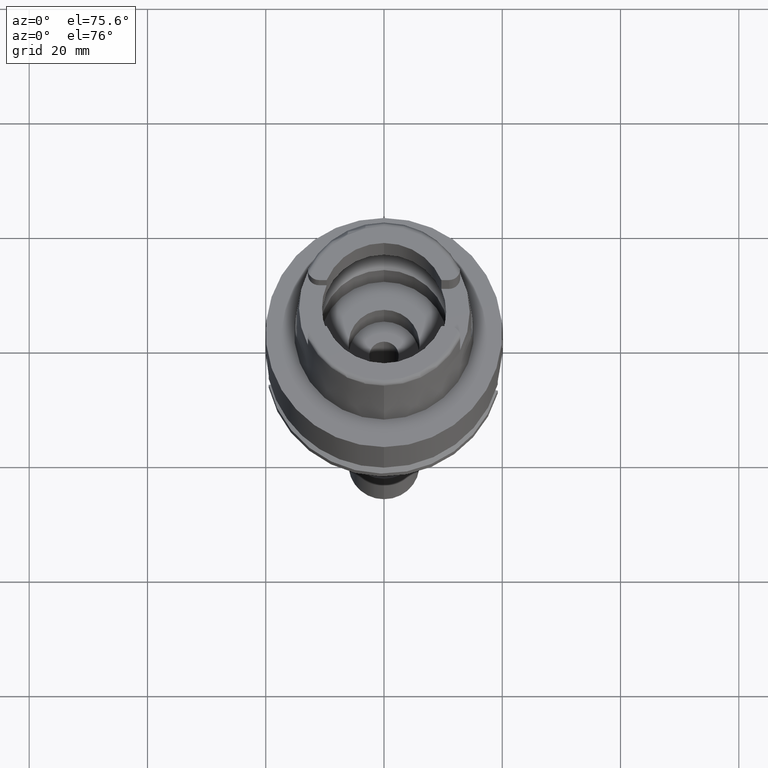
[diagram: clean part render]
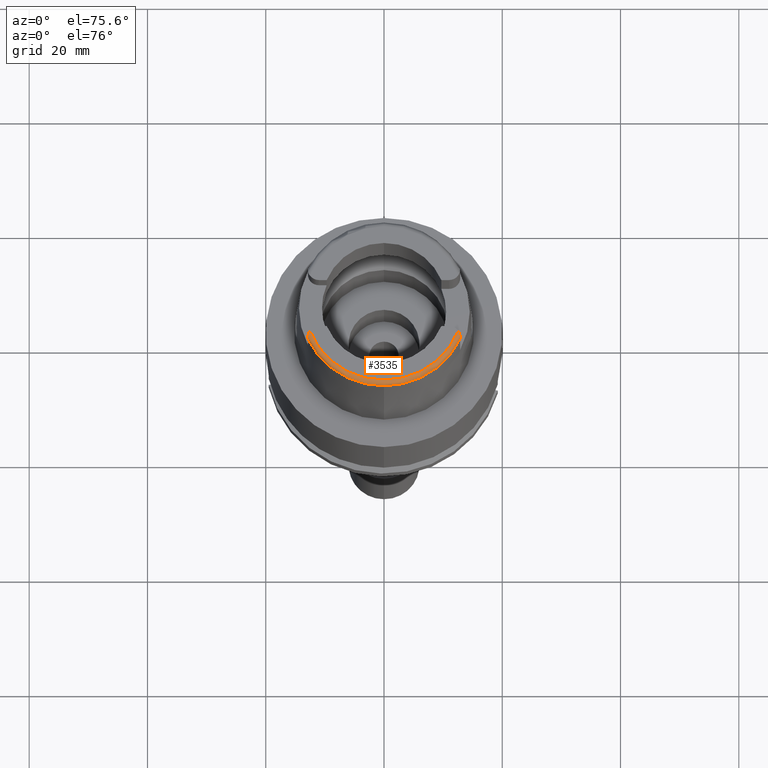
[diagram: same view with one face highlighted and labeled with its STEP entity id]
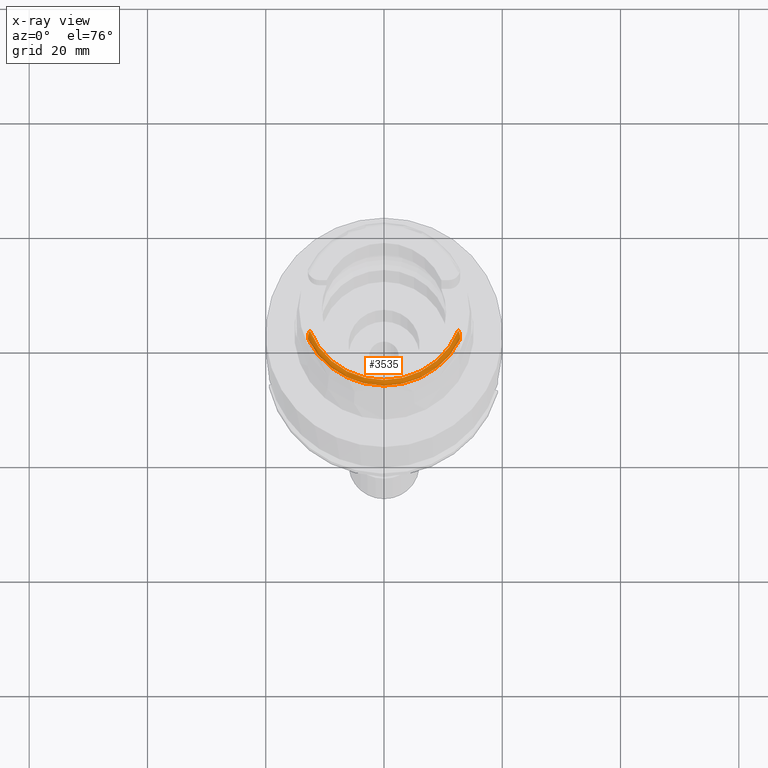
[diagram: x-ray of the same camera — body ghosted, the highlighted face saturated]
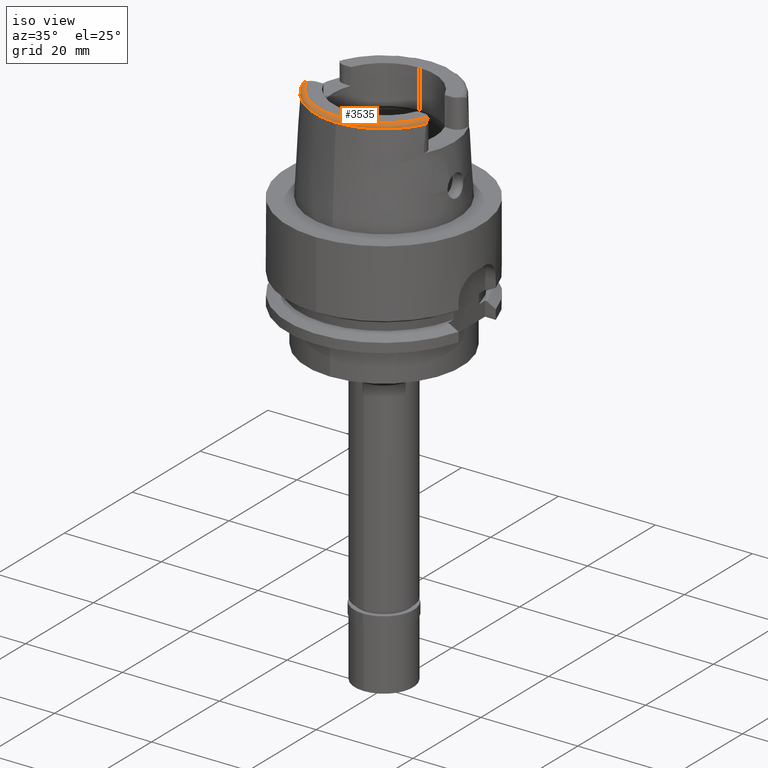
[diagram: same view with one face highlighted and labeled with its STEP entity id]
A machine part, auxiliary view. The second image highlights one B-rep face of the part: STEP entity #3535.
The next image is the same camera in x-ray: the body ghosted, the highlighted face saturated — about 0% of this face is hidden behind the body in this view.
A second angle (iso view) of the same face is appended — the face is thin or edge-on in the first view.
In plain terms, the highlighted toroidal blend (fillet) surface has major radius 13.439 mm and minor (blend) radius 0.8 mm.
Its self-contained STEP definition (entity closure, byte-faithful):
#6 = EDGE_LOOP ( 'NONE', ( #4674, #2581, #4157, #4992, #4122, #5005, #3753 ) ) ;
#55 = CARTESIAN_POINT ( 'NONE',  ( -12.63857320992588740, -4.983089659749927236, 19.98670150271702184 ) ) ;
#67 = AXIS2_PLACEMENT_3D ( 'NONE', #4349, #1844, #2269 ) ;
#84 = DIRECTION ( 'NONE',  ( -0.001046041333563013523, -0.9999994528986144715, 0.0000000000000000000 ) ) ;
#134 = CARTESIAN_POINT ( 'NONE',  ( -12.76854466438027913, -5.266377473712359425, 19.90827737632032424 ) ) ;
#192 = CARTESIAN_POINT ( 'NONE',  ( -12.83719301516156897, -5.506101886964135161, 19.79995353554010507 ) ) ;
#253 = VERTEX_POINT ( 'NONE', #5057 ) ;
#271 = CARTESIAN_POINT ( 'NONE',  ( -12.86081662667556635, -5.636382681480650803, 19.72613978190158690 ) ) ;
#292 = CARTESIAN_POINT ( 'NONE',  ( 12.88000213910999925, -6.065715440485000443, 19.26282987802000335 ) ) ;
#309 = CARTESIAN_POINT ( 'NONE',  ( -12.87999878070000115, -6.068418760296000691, 19.23992111829999985 ) ) ;
#336 = CARTESIAN_POINT ( 'NONE',  ( 12.64411188684354848, -4.987922265928352417, 19.98918976611777154 ) ) ;
#408 = VERTEX_POINT ( 'NONE', #4471 ) ;
#437 = CARTESIAN_POINT ( 'NONE',  ( 0.0000000000000000000, 0.0000000000000000000, 20.00000000000000000 ) ) ;
#508 = CARTESIAN_POINT ( 'NONE',  ( -12.83200159707264731, -5.482917224599092698, 19.81193871953858832 ) ) ;
#535 = CARTESIAN_POINT ( 'NONE',  ( -12.75433686243704301, -5.228841568962940833, 19.92179084580359572 ) ) ;
#549 = CARTESIAN_POINT ( 'NONE',  ( -12.87999878070000115, -6.065726558913000055, 19.26286937616000117 ) ) ;
#589 = VERTEX_POINT ( 'NONE', #2887 ) ;
#661 = CARTESIAN_POINT ( 'NONE',  ( 12.81455670654926671, -5.410378019032934915, 19.84803529614281103 ) ) ;
#833 = FACE_OUTER_BOUND ( 'NONE', #6, .T. ) ;
#855 = EDGE_CURVE ( 'NONE', #918, #589, #4828, .T. ) ;
#880 = CARTESIAN_POINT ( 'NONE',  ( -12.62684076444257109, -4.962557692575448876, 19.98990576004395336 ) ) ;
#909 = CARTESIAN_POINT ( 'NONE',  ( -12.59107063544328575, -4.902518344212351664, 19.99754377842982223 ) ) ;
#918 = VERTEX_POINT ( 'NONE', #309 ) ;
#1046 = CARTESIAN_POINT ( 'NONE',  ( 12.88000026739000070, -6.024288196518999605, 19.38194418187999801 ) ) ;
#1047 = CARTESIAN_POINT ( 'NONE',  ( -12.88000000000000078, -5.904999999999999361, 19.52698079989999869 ) ) ;
#1063 = CARTESIAN_POINT ( 'NONE',  ( 12.54148453352999937, -4.828791175990000184, 20.00000000000000000 ) ) ;
#1101 = CARTESIAN_POINT ( 'NONE',  ( -12.85711635459553825, -5.611799529522623509, 19.74093359873433329 ) ) ;
#1108 = TOROIDAL_SURFACE ( 'NONE', #1707, 13.43897535253999997, 0.8000000000000000444 ) ;
#1311 = CARTESIAN_POINT ( 'NONE',  ( -12.79486012366100489, -5.345599364782248841, 19.87611183064335663 ) ) ;
#1352 = AXIS2_PLACEMENT_3D ( 'NONE', #437, #3729, #2906 ) ;
#1374 = CARTESIAN_POINT ( 'NONE',  ( -12.83528984767741399, -5.497430285917277892, 19.80447797007779442 ) ) ;
#1479 = CARTESIAN_POINT ( 'NONE',  ( -12.85113354569106470, -5.574794193303445056, 19.76275470885714114 ) ) ;
#1549 = CARTESIAN_POINT ( 'NONE',  ( 12.82761557913480743, -5.461296134799156654, 19.82363403086766240 ) ) ;
#1672 = VERTEX_POINT ( 'NONE', #3715 ) ;
#1707 = AXIS2_PLACEMENT_3D ( 'NONE', #3265, #4899, #2024 ) ;
#1724 = CARTESIAN_POINT ( 'NONE',  ( -12.79744393601692032, -5.353975916338745478, 19.87251842005004931 ) ) ;
#1765 = CARTESIAN_POINT ( 'NONE',  ( -12.87999878070000115, -6.068418760296000691, 19.23992111829999985 ) ) ;
#1838 = CARTESIAN_POINT ( 'NONE',  ( 12.88000000000000078, -5.904999999999999361, 19.52698079989999869 ) ) ;
#1844 = DIRECTION ( 'NONE',  ( 0.0000000000000000000, 0.0000000000000000000, -1.000000000000000000 ) ) ;
#1860 = CARTESIAN_POINT ( 'NONE',  ( 12.88000213910999925, -6.068393260412999979, 19.24000420731999839 ) ) ;
#1928 = CARTESIAN_POINT ( 'NONE',  ( 12.70933599500946976, -5.120777886780442323, 19.95675906447110393 ) ) ;
#1966 = CIRCLE ( 'NONE', #67, 14.23797715756000315 ) ;
#2024 = DIRECTION ( 'NONE',  ( -0.001046041333563015692, -0.9999994528986146936, 0.0000000000000000000 ) ) ;
#2125 = CARTESIAN_POINT ( 'NONE',  ( -12.72513106151510520, -5.156116146892294694, 19.94624949097419631 ) ) ;
#2170 = CARTESIAN_POINT ( 'NONE',  ( -12.88000000000000078, -5.930580561565999886, 19.50317608033999761 ) ) ;
#2238 = CARTESIAN_POINT ( 'NONE',  ( -12.87999999999921386, -5.847752983191679910, 19.58025364057268902 ) ) ;
#2262 = CARTESIAN_POINT ( 'NONE',  ( 12.88000000000000078, -5.930582771516999863, 19.50317402381000065 ) ) ;
#2269 = DIRECTION ( 'NONE',  ( 0.9046233376276806570, -0.4262119390858908896, 0.0000000000000000000 ) ) ;
#2497 = EDGE_CURVE ( 'NONE', #3601, #1672, #4923, .T. ) ;
#2581 = ORIENTED_EDGE ( 'NONE', *, *, #3176, .F. ) ;
#2606 = CARTESIAN_POINT ( 'NONE',  ( -12.56646350096936260, -4.864569262087712787, 19.99999999999970512 ) ) ;
#2674 = CARTESIAN_POINT ( 'NONE',  ( -12.88000004355000172, -5.975350730613000039, 19.45502053347999905 ) ) ;
#2854 = B_SPLINE_CURVE_WITH_KNOTS ( 'NONE', 3,
 ( #1063, #4334, #336, #1928, #5189, #3921, #5238, #661, #1549, #3951, #3195, #4827, #4773, #4031 ),
 .UNSPECIFIED., .F., .F.,
 ( 4, 2, 2, 2, 2, 2, 4 ),
 ( 0.0000000000000000000, 0.2500000000000024425, 0.3750000000000017764, 0.5000000000000011102, 0.6250000000000004441, 0.7499999999999997780, 1.000000000000000000 ),
 .UNSPECIFIED. ) ;
#2887 = CARTESIAN_POINT ( 'NONE',  ( -12.88000000000000078, -5.904999999999999361, 19.52698079989999869 ) ) ;
#2906 = DIRECTION ( 'NONE',  ( 0.9332173178785413414, -0.3593124512337161347, 0.0000000000000000000 ) ) ;
#2926 = CARTESIAN_POINT ( 'NONE',  ( -12.78415962775907033, -5.312138087209837600, 19.89010133047479201 ) ) ;
#2996 = EDGE_CURVE ( 'NONE', #5090, #253, #4881, .T. ) ;
#3126 = CARTESIAN_POINT ( 'NONE',  ( -12.84388876495184029, -5.537421669254533718, 19.78342096623057245 ) ) ;
#3176 = EDGE_CURVE ( 'NONE', #1672, #408, #1966, .T. ) ;
#3195 = CARTESIAN_POINT ( 'NONE',  ( 12.85786363444935709, -5.613398934760802206, 19.74078735948931396 ) ) ;
#3265 = CARTESIAN_POINT ( 'NONE',  ( 0.0000000000000000000, 0.0000000000000000000, 19.19999999999999929 ) ) ;
#3347 = CARTESIAN_POINT ( 'NONE',  ( -12.67329578661815148, -5.047714149197730649, 19.97414397994840485 ) ) ;
#3377 = CARTESIAN_POINT ( 'NONE',  ( -12.80532323586211874, -5.379958312994286729, 19.86124373840759461 ) ) ;
#3425 = CARTESIAN_POINT ( 'NONE',  ( -12.81195575162056244, -5.403172042689091903, 19.85079208996235778 ) ) ;
#3510 = CARTESIAN_POINT ( 'NONE',  ( -12.86238203805264035, -5.647529903754725744, 19.71930873323738354 ) ) ;
#3535 = ADVANCED_FACE ( 'NONE', ( #833 ), #1108, .T. ) ;
#3562 = CARTESIAN_POINT ( 'NONE',  ( 12.87999992359999979, -5.975355059434999561, 19.45501684108999996 ) ) ;
#3601 = VERTEX_POINT ( 'NONE', #3776 ) ;
#3642 = EDGE_CURVE ( 'NONE', #408, #918, #3953, .T. ) ;
#3661 = EDGE_CURVE ( 'NONE', #253, #589, #4982, .T. ) ;
#3715 = CARTESIAN_POINT ( 'NONE',  ( 12.88000213910999925, -6.068393260412999979, 19.24000420731999839 ) ) ;
#3729 = DIRECTION ( 'NONE',  ( 0.0000000000000000000, 0.0000000000000000000, -1.000000000000000000 ) ) ;
#3750 = CARTESIAN_POINT ( 'NONE',  ( -12.54148453352999937, -4.828791175990000184, 20.00000000000000000 ) ) ;
#3753 = ORIENTED_EDGE ( 'NONE', *, *, #855, .F. ) ;
#3776 = CARTESIAN_POINT ( 'NONE',  ( 12.88000000000000078, -5.904999999999999361, 19.52698079989999869 ) ) ;
#3921 = CARTESIAN_POINT ( 'NONE',  ( 12.76691457272023378, -5.260808665463629907, 19.91081557047166584 ) ) ;
#3951 = CARTESIAN_POINT ( 'NONE',  ( 12.84916428801639832, -5.562008365969036916, 19.77051276430807292 ) ) ;
#3953 = CIRCLE ( 'NONE', #4470, 14.23797715756000315 ) ;
#4031 = CARTESIAN_POINT ( 'NONE',  ( 12.88000000000000078, -5.904999999999999361, 19.52698079989999869 ) ) ;
#4122 = ORIENTED_EDGE ( 'NONE', *, *, #2996, .T. ) ;
#4157 = ORIENTED_EDGE ( 'NONE', *, *, #2497, .F. ) ;
#4208 = CARTESIAN_POINT ( 'NONE',  ( -12.82199160963165596, -5.441518333733581514, 19.83253706659778359 ) ) ;
#4238 = CARTESIAN_POINT ( 'NONE',  ( -12.70461912771022028, -5.110766808560557095, 19.95912744227812397 ) ) ;
#4250 = EDGE_CURVE ( 'NONE', #5090, #3601, #2854, .T. ) ;
#4334 = CARTESIAN_POINT ( 'NONE',  ( 12.59486059742071618, -4.905243231676443827, 20.00000000000000000 ) ) ;
#4335 = CARTESIAN_POINT ( 'NONE',  ( -12.88000000000000078, -5.904999999999999361, 19.52698079989999869 ) ) ;
#4349 = CARTESIAN_POINT ( 'NONE',  ( 0.0000000000000000000, 0.0000000000000000000, 19.23995141520000018 ) ) ;
#4470 = AXIS2_PLACEMENT_3D ( 'NONE', #4580, #4603, #84 ) ;
#4471 = CARTESIAN_POINT ( 'NONE',  ( 0.0000000000000000000, -14.23797715755999782, 19.23995141520000018 ) ) ;
#4481 = CARTESIAN_POINT ( 'NONE',  ( 12.54148453352999937, -4.828791175990000184, 20.00000000000000000 ) ) ;
#4580 = CARTESIAN_POINT ( 'NONE',  ( 0.0000000000000000000, 0.0000000000000000000, 19.23995141520000018 ) ) ;
#4603 = DIRECTION ( 'NONE',  ( 0.0000000000000000000, 0.0000000000000000000, -1.000000000000000000 ) ) ;
#4630 = CARTESIAN_POINT ( 'NONE',  ( -12.66154958130891828, -5.025162334240214967, 19.97894102743991596 ) ) ;
#4660 = CARTESIAN_POINT ( 'NONE',  ( -12.79061383410611086, -5.332160806613315707, 19.88177955699823229 ) ) ;
#4674 = ORIENTED_EDGE ( 'NONE', *, *, #3642, .F. ) ;
#4685 = CARTESIAN_POINT ( 'NONE',  ( -12.87766922954259030, -5.767253271099200163, 19.64436335351656737 ) ) ;
#4731 = CARTESIAN_POINT ( 'NONE',  ( -12.88000056611000055, -6.055665201175000512, 19.30940872580999823 ) ) ;
#4773 = CARTESIAN_POINT ( 'NONE',  ( 12.87999999999999545, -5.837435790759137433, 19.58985459761358783 ) ) ;
#4827 = CARTESIAN_POINT ( 'NONE',  ( 12.87650273418267055, -5.755697118457090866, 19.65116546222511573 ) ) ;
#4828 = B_SPLINE_CURVE_WITH_KNOTS ( 'NONE', 3,
 ( #1765, #549, #4731, #5166, #2674, #2170, #4335 ),
 .UNSPECIFIED., .F., .F.,
 ( 4, 1, 1, 1, 4 ),
 ( 0.0000000000000000000, 0.2500000000000000000, 0.5000000000000000000, 0.7500000000000000000, 1.000000000000000000 ),
 .UNSPECIFIED. ) ;
#4881 = CIRCLE ( 'NONE', #1352, 13.43897535253999465 ) ;
#4899 = DIRECTION ( 'NONE',  ( 0.0000000000000000000, 0.0000000000000000000, 1.000000000000000000 ) ) ;
#4923 = B_SPLINE_CURVE_WITH_KNOTS ( 'NONE', 3,
 ( #1838, #2262, #3562, #1046, #5173, #292, #1860 ),
 .UNSPECIFIED., .F., .F.,
 ( 4, 1, 1, 1, 4 ),
 ( 0.0000000000000000000, 0.2500000000000000000, 0.5000000000000000000, 0.7500000000000000000, 1.000000000000000000 ),
 .UNSPECIFIED. ) ;
#4982 = B_SPLINE_CURVE_WITH_KNOTS ( 'NONE', 3,
 ( #3750, #2606, #909, #880, #55, #4630, #3347, #4238, #2125, #535, #134, #2926, #4660, #1311, #1724, #3377, #3425, #4208, #5060, #508, #1374, #192, #3126, #1479, #1101, #271, #3510, #4685, #2238, #1047 ),
 .UNSPECIFIED., .F., .F.,
 ( 4, 2, 2, 2, 2, 1, 1, 2, 2, 2, 1, 2, 2, 1, 2, 2, 4 ),
 ( 0.0000000000000000000, 0.1249999999999996669, 0.1875000000000004996, 0.2500000000000013323, 0.3750000000000009992, 0.4375000000000008327, 0.4687500000000007216, 0.4843750000000007216, 0.5000000000000006661, 0.5625000000000071054, 0.5937500000000093259, 0.6093750000000087708, 0.6250000000000083267, 0.6875000000000042188, 0.7187500000000031086, 0.7500000000000018874, 1.000000000000000000 ),
 .UNSPECIFIED. ) ;
#4992 = ORIENTED_EDGE ( 'NONE', *, *, #4250, .F. ) ;
#5005 = ORIENTED_EDGE ( 'NONE', *, *, #3661, .T. ) ;
#5057 = CARTESIAN_POINT ( 'NONE',  ( -12.54148453352999937, -4.828791175990000184, 20.00000000000000000 ) ) ;
#5060 = CARTESIAN_POINT ( 'NONE',  ( -12.82702936268187877, -5.461572142297295152, 19.82276440655546779 ) ) ;
#5090 = VERTEX_POINT ( 'NONE', #4481 ) ;
#5166 = CARTESIAN_POINT ( 'NONE',  ( -12.87999984758999972, -6.024291663127000263, 19.38194694609000024 ) ) ;
#5173 = CARTESIAN_POINT ( 'NONE',  ( 12.87999900684000032, -6.055667860939999869, 19.30943594009000108 ) ) ;
#5189 = CARTESIAN_POINT ( 'NONE',  ( 12.72963342761471317, -5.166530102942142655, 19.94324627211831924 ) ) ;
#5238 = CARTESIAN_POINT ( 'NONE',  ( 12.78346371698249229, -5.307903596103860977, 19.89251909068384094 ) ) ;